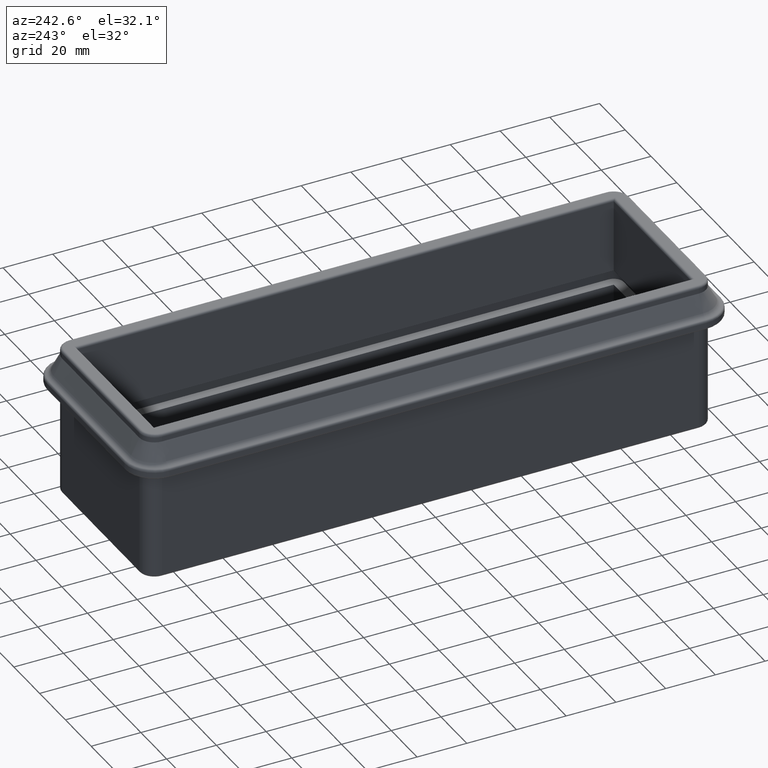
[diagram: clean part render]
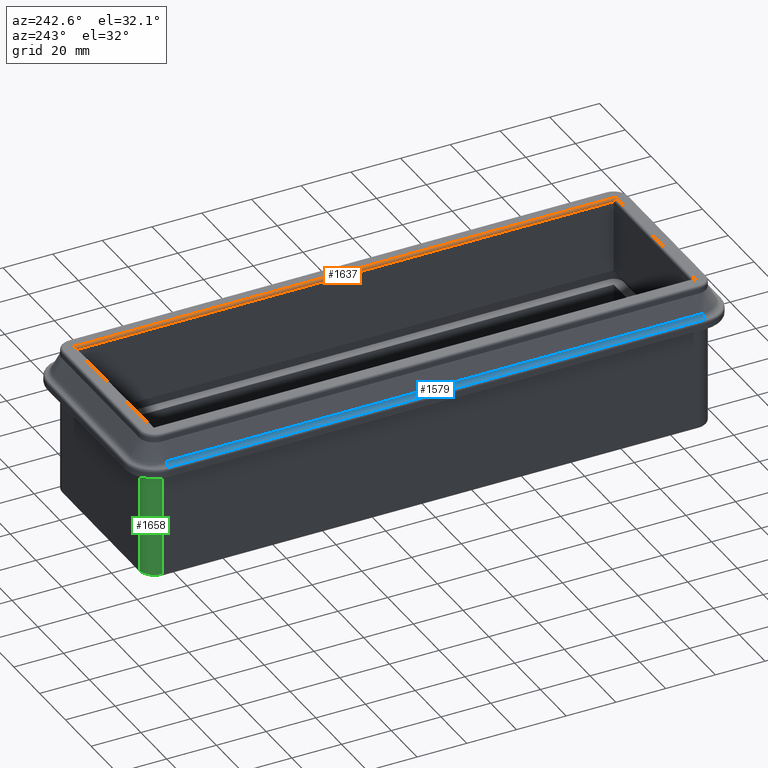
[diagram: same view with three faces highlighted in distinct colors, each labeled with its STEP entity id]
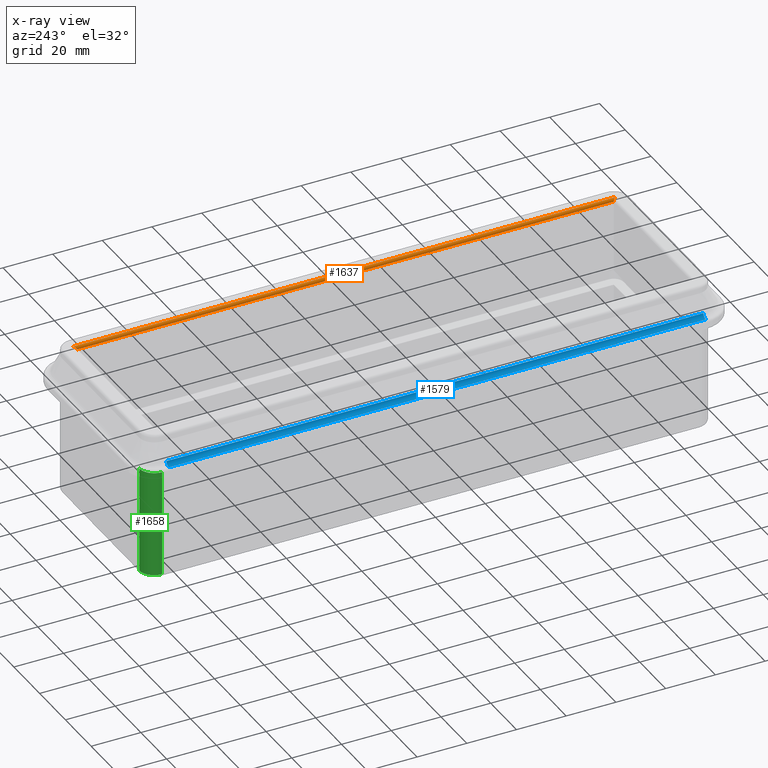
[diagram: x-ray of the same camera — body ghosted, the three highlighted faces saturated]
A machine part, auxiliary view with three faces highlighted in distinct colors.
The next image is the same camera in x-ray (body ghosted, the three faces saturated) — at least one of them is partly hidden behind the body in this view.
Their STEP definitions:

[orange] entity #1637 — the highlighted cylindrical surface (edge-blend (fillet) strip) has radius 1 mm, axis along (-0, 1, 0).
#15=ELLIPSE('',#1848,1.41421356237301,1.);
#16=ELLIPSE('',#1849,1.41421356237301,1.);
#150=FACE_OUTER_BOUND('',#261,.T.);
#261=EDGE_LOOP('',(#1312,#1313,#1314,#1315));
#376=LINE('',#2791,#504);
#380=LINE('',#2801,#508);
#504=VECTOR('',#2276,10.);
#508=VECTOR('',#2284,10.);
#756=VERTEX_POINT('',#2789);
#757=VERTEX_POINT('',#2790);
#760=VERTEX_POINT('',#2798);
#761=VERTEX_POINT('',#2800);
#953=EDGE_CURVE('',#756,#757,#376,.T.);
#957=EDGE_CURVE('',#757,#760,#15,.T.);
#958=EDGE_CURVE('',#760,#761,#380,.T.);
#959=EDGE_CURVE('',#756,#761,#16,.T.);
#1312=ORIENTED_EDGE('',*,*,#953,.T.);
#1313=ORIENTED_EDGE('',*,*,#957,.T.);
#1314=ORIENTED_EDGE('',*,*,#958,.T.);
#1315=ORIENTED_EDGE('',*,*,#959,.F.);
#1555=CYLINDRICAL_SURFACE('',#1847,1.);
#1637=ADVANCED_FACE('',(#150),#1555,.T.);
#1847=AXIS2_PLACEMENT_3D('',#2797,#2280,#2281);
#1848=AXIS2_PLACEMENT_3D('',#2799,#2282,#2283);
#1849=AXIS2_PLACEMENT_3D('',#2802,#2285,#2286);
#2276=DIRECTION('',(-2.05596856412066E-16,1.,0.));
#2280=DIRECTION('center_axis',(-2.05596856412066E-16,1.,0.));
#2281=DIRECTION('ref_axis',(-0.707106781186548,0.,0.707106781186548));
#2282=DIRECTION('center_axis',(0.707106781186507,-0.707106781186588,-3.14018491736737E-15));
#2283=DIRECTION('ref_axis',(-0.707106781186588,-0.707106781186507,3.14018491736773E-15));
#2284=DIRECTION('',(2.05596856412066E-16,-1.,0.));
#2285=DIRECTION('center_axis',(-0.707106781186588,-0.707106781186507,-3.14018491736773E-15));
#2286=DIRECTION('ref_axis',(-0.707106781186507,0.707106781186588,3.14018491736809E-15));
#2789=CARTESIAN_POINT('',(30.9999999999999,-109.,30.));
#2790=CARTESIAN_POINT('',(30.9999999999999,109.,30.));
#2791=CARTESIAN_POINT('',(30.9999999999999,-108.,30.));
#2797=CARTESIAN_POINT('Origin',(30.9999999999999,-108.,29.));
#2798=CARTESIAN_POINT('',(29.9999999999999,108.,29.));
#2799=CARTESIAN_POINT('Origin',(30.9999999999999,109.,29.));
#2800=CARTESIAN_POINT('',(30.,-108.,29.));
#2801=CARTESIAN_POINT('',(29.9999999999999,-108.,29.));
#2802=CARTESIAN_POINT('Origin',(30.9999999999999,-109.,29.));

[blue] entity #1579 — the highlighted cylindrical surface (edge-blend (fillet) strip) has radius 3 mm, axis along (-0, 1, -0).
#92=FACE_OUTER_BOUND('',#201,.T.);
#201=EDGE_LOOP('',(#1060,#1061,#1062,#1063));
#314=LINE('',#2522,#442);
#315=LINE('',#2525,#443);
#442=VECTOR('',#1954,3.);
#443=VECTOR('',#1957,3.);
#570=CIRCLE('',#1709,2.99999999999993);
#576=CIRCLE('',#1717,3.);
#676=VERTEX_POINT('',#2509);
#677=VERTEX_POINT('',#2510);
#680=VERTEX_POINT('',#2521);
#681=VERTEX_POINT('',#2523);
#812=EDGE_CURVE('',#676,#677,#570,.T.);
#818=EDGE_CURVE('',#676,#680,#314,.T.);
#819=EDGE_CURVE('',#680,#681,#576,.T.);
#820=EDGE_CURVE('',#681,#677,#315,.T.);
#1060=ORIENTED_EDGE('',*,*,#812,.F.);
#1061=ORIENTED_EDGE('',*,*,#818,.T.);
#1062=ORIENTED_EDGE('',*,*,#819,.T.);
#1063=ORIENTED_EDGE('',*,*,#820,.T.);
#1529=CYLINDRICAL_SURFACE('',#1716,3.);
#1579=ADVANCED_FACE('',(#92),#1529,.F.);
#1709=AXIS2_PLACEMENT_3D('',#2511,#1938,#1939);
#1716=AXIS2_PLACEMENT_3D('',#2520,#1952,#1953);
#1717=AXIS2_PLACEMENT_3D('',#2524,#1955,#1956);
#1938=DIRECTION('center_axis',(-7.62302314585931E-15,-1.,-1.91848484237355E-15));
#1939=DIRECTION('ref_axis',(0.244059393987553,0.,-0.969760285950311));
#1952=DIRECTION('center_axis',(-3.083952846181E-16,1.,-6.93173080534996E-31));
#1953=DIRECTION('ref_axis',(-0.891006524188368,-2.74782210623655E-16,0.453990499739547));
#1954=DIRECTION('',(3.083952846181E-16,-1.,6.93173080534996E-31));
#1955=DIRECTION('center_axis',(0.,-1.,0.));
#1956=DIRECTION('ref_axis',(0.244059393987547,0.,-0.969760285950312));
#1957=DIRECTION('',(-3.083952846181E-16,1.,-6.93173080534996E-31));
#2509=CARTESIAN_POINT('',(-41.2440593939875,108.,18.9697602859504));
#2510=CARTESIAN_POINT('',(-39.3032180033851,108.,20.5170696445826));
#2511=CARTESIAN_POINT('Origin',(-41.9762375759501,108.,21.8790411438012));
#2520=CARTESIAN_POINT('Origin',(-41.9762375759502,3.50836224954377E-14,
21.8790411438012));
#2521=CARTESIAN_POINT('',(-41.2440593939875,-108.,18.9697602859503));
#2522=CARTESIAN_POINT('',(-41.2440593939875,3.53094227942552E-14,18.9697602859503));
#2523=CARTESIAN_POINT('',(-39.303218003385,-108.,20.5170696445826));
#2524=CARTESIAN_POINT('Origin',(-41.9762375759501,-108.,21.8790411438012));
#2525=CARTESIAN_POINT('',(-39.3032180033851,3.59079691273087E-14,20.5170696445826));

[green] entity #1658 — the highlighted cylindrical surface (edge-blend (fillet) strip) has radius 6 mm, axis along (0, 0, 1).
#171=FACE_OUTER_BOUND('',#283,.T.);
#283=EDGE_LOOP('',(#1404,#1405,#1406,#1407));
#339=LINE('',#2636,#467);
#408=LINE('',#2898,#536);
#467=VECTOR('',#2087,10.);
#536=VECTOR('',#2396,10.);
#604=CIRCLE('',#1762,5.99999999999992);
#660=CIRCLE('',#1885,5.99999999999992);
#706=VERTEX_POINT('',#2605);
#708=VERTEX_POINT('',#2611);
#715=VERTEX_POINT('',#2634);
#787=VERTEX_POINT('',#2888);
#865=EDGE_CURVE('',#706,#708,#604,.T.);
#876=EDGE_CURVE('',#706,#715,#339,.T.);
#1003=EDGE_CURVE('',#787,#715,#660,.T.);
#1007=EDGE_CURVE('',#787,#708,#408,.T.);
#1404=ORIENTED_EDGE('',*,*,#865,.F.);
#1405=ORIENTED_EDGE('',*,*,#876,.T.);
#1406=ORIENTED_EDGE('',*,*,#1003,.F.);
#1407=ORIENTED_EDGE('',*,*,#1007,.T.);
#1567=CYLINDRICAL_SURFACE('',#1890,5.99999999999992);
#1658=ADVANCED_FACE('',(#171),#1567,.T.);
#1762=AXIS2_PLACEMENT_3D('',#2615,#2063,#2064);
#1885=AXIS2_PLACEMENT_3D('',#2890,#2383,#2384);
#1890=AXIS2_PLACEMENT_3D('',#2897,#2394,#2395);
#2063=DIRECTION('center_axis',(0.,0.,1.));
#2064=DIRECTION('ref_axis',(-0.707106781186547,0.707106781186548,0.));
#2087=DIRECTION('',(1.26898900188376E-31,6.90805437544542E-16,-1.));
#2383=DIRECTION('center_axis',(0.,0.,-1.));
#2384=DIRECTION('ref_axis',(-0.707106781186546,0.707106781186549,0.));
#2394=DIRECTION('center_axis',(0.,0.,1.));
#2395=DIRECTION('ref_axis',(0.,1.,0.));
#2396=DIRECTION('',(6.90805437544542E-16,0.,1.));
#2605=CARTESIAN_POINT('',(-30.,114.,14.));
#2611=CARTESIAN_POINT('',(-36.,108.,14.));
#2615=CARTESIAN_POINT('Origin',(-30.,108.,14.));
#2634=CARTESIAN_POINT('',(-30.,114.,-29.));
#2636=CARTESIAN_POINT('',(-30.,114.,-30.));
#2888=CARTESIAN_POINT('',(-36.,108.,-29.));
#2890=CARTESIAN_POINT('Origin',(-30.,108.,-29.));
#2897=CARTESIAN_POINT('Origin',(-30.,108.,-7.50000000000002));
#2898=CARTESIAN_POINT('',(-36.,108.,-30.));